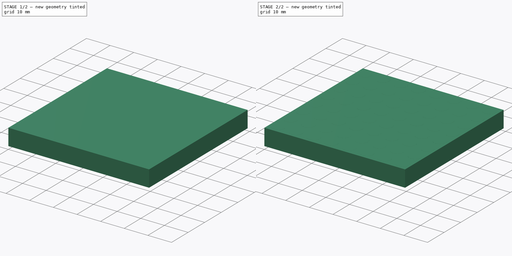
[diagram: build sequence overview — one tinted view per stage of 2, left to right]
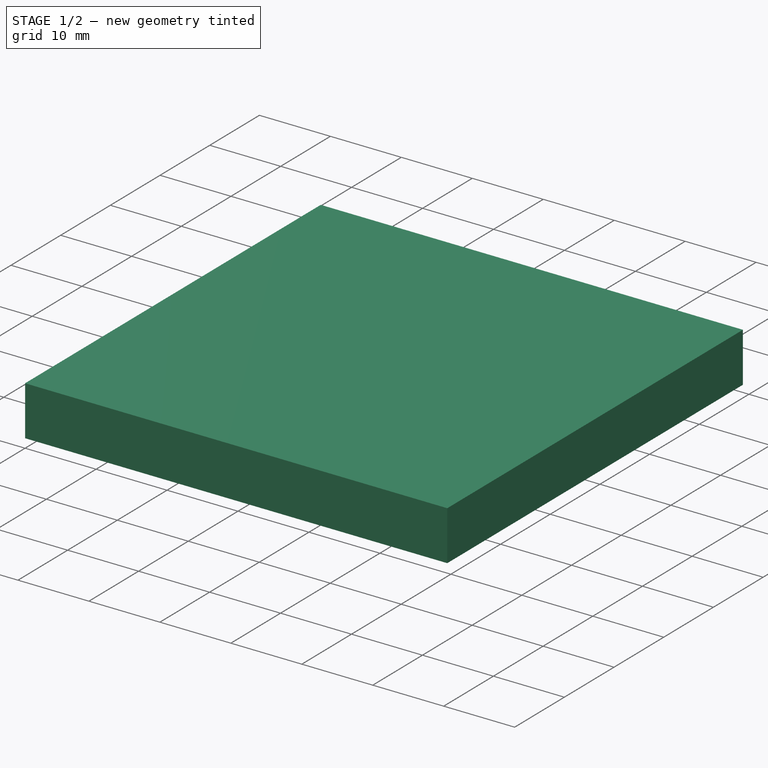
[diagram: stage 1 of 2 — iso view after this stage's code; geometry added in this stage tinted green]
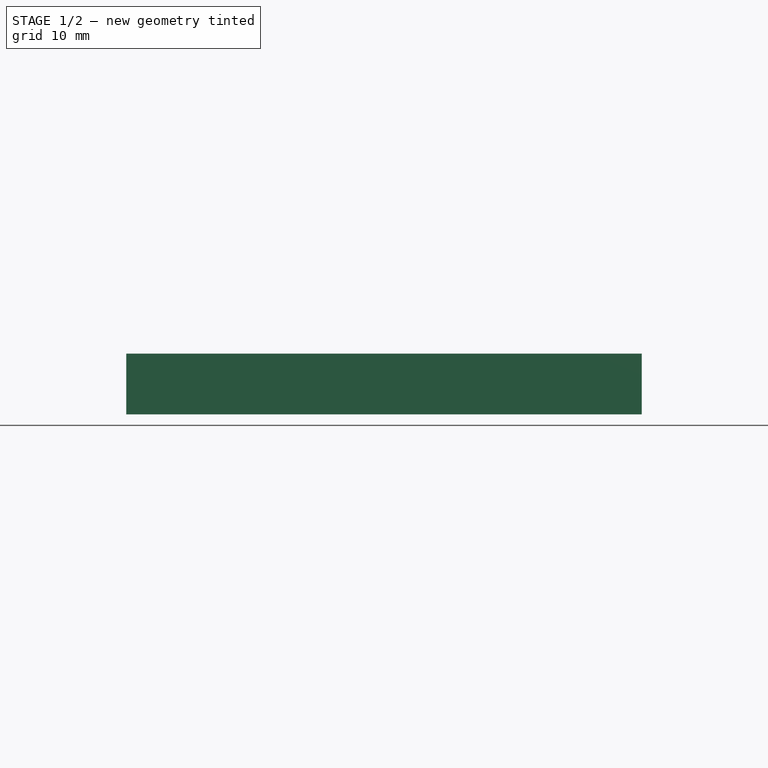
[diagram: stage 1 of 2 — front view after this stage's code; geometry added in this stage tinted green]
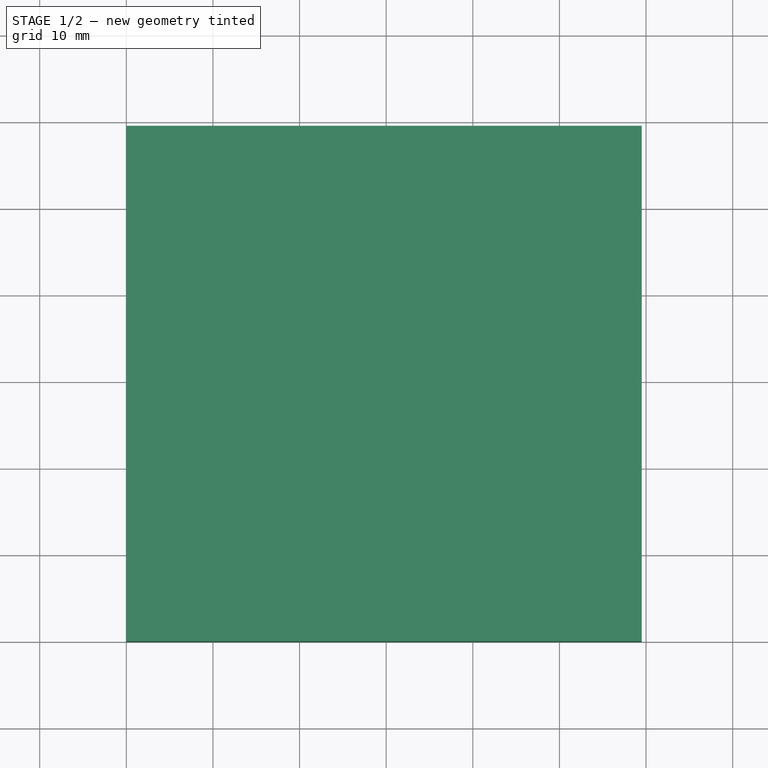
[diagram: stage 1 of 2 — top view after this stage's code; geometry added in this stage tinted green]
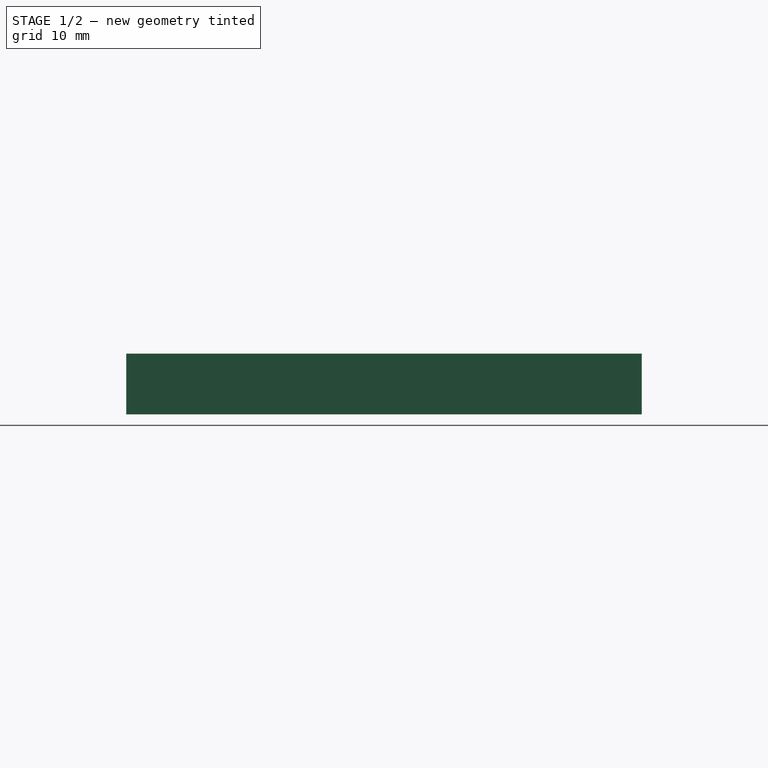
[diagram: stage 1 of 2 — right view after this stage's code; geometry added in this stage tinted green]
FCSTD DOCUMENT  (FreeCAD 0.21R33771 (Git))
Label: 3d model
License: All rights reserved
LicenseURL: http://en.wikipedia.org/wiki/All_rights_reserved
objects: Sketcher::SketchObject×2, PartDesign::Pad×2, PartDesign::Body×1
note: 7 computed .brp shape members not serialized (recipe doc carries the construction recipe); baked Part::Feature solids carry a one-line shape summary decoded from their .brp

FEATURE [Sketcher::SketchObject] Sketch
  FullyConstrained = true
  MapMode = 5
  Support = -> [XY_Plane]
  sketch-geometry (4):
    g0: LineSegment StartX=0 StartY=0 StartZ=0 EndX=59.5 EndY=0 EndZ=0
    g1: LineSegment StartX=59.5 StartY=0 StartZ=0 EndX=59.5 EndY=59.5 EndZ=0
    g2: LineSegment StartX=59.5 StartY=59.5 StartZ=0 EndX=0 EndY=59.5 EndZ=0
    g3: LineSegment StartX=0 StartY=59.5 StartZ=0 EndX=0 EndY=0 EndZ=0
  constraints (11):
    c: Coincident(g0,g1)
    c: Coincident(g1,g2)
    c: Coincident(g2,g3)
    c: Coincident(g3,g0)
    c: Horizontal(g0)
    c: Horizontal(g2)
    c: Vertical(g1)
    c: Vertical(g3)
    c: Coincident(g0,g-1)
    c: Distance(g0) = 59.5
    c: Distance(g1) = 59.5
FEATURE [PartDesign::Pad] Pad
  Direction = (0,0,1)
  Length = 7
  Length2 = 10
  Profile = -> Sketch
  ReferenceAxis = -> Sketch [N_Axis]
  Type = 0
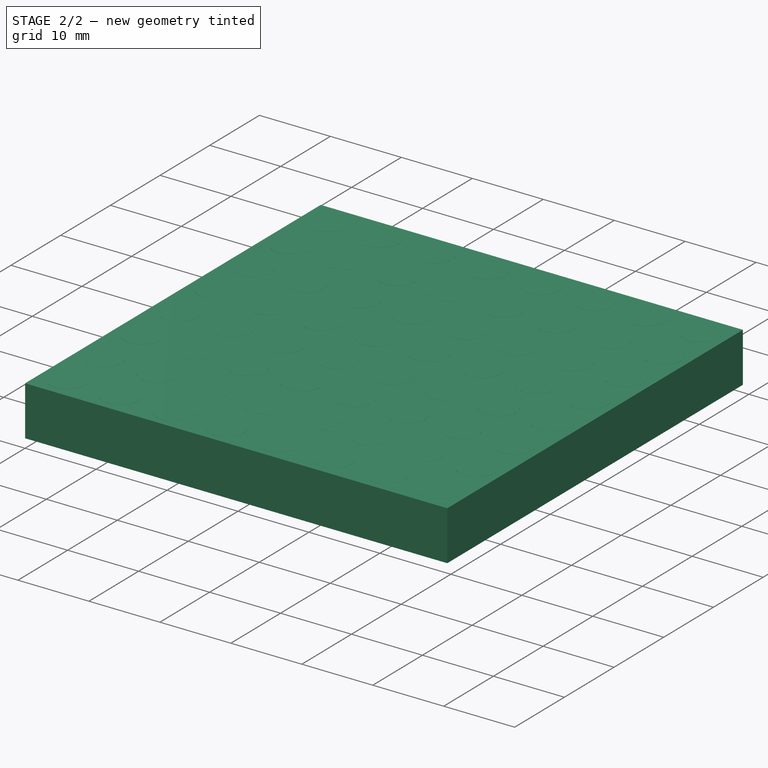
[diagram: stage 2 of 2 — iso view after this stage's code; geometry added in this stage tinted green]
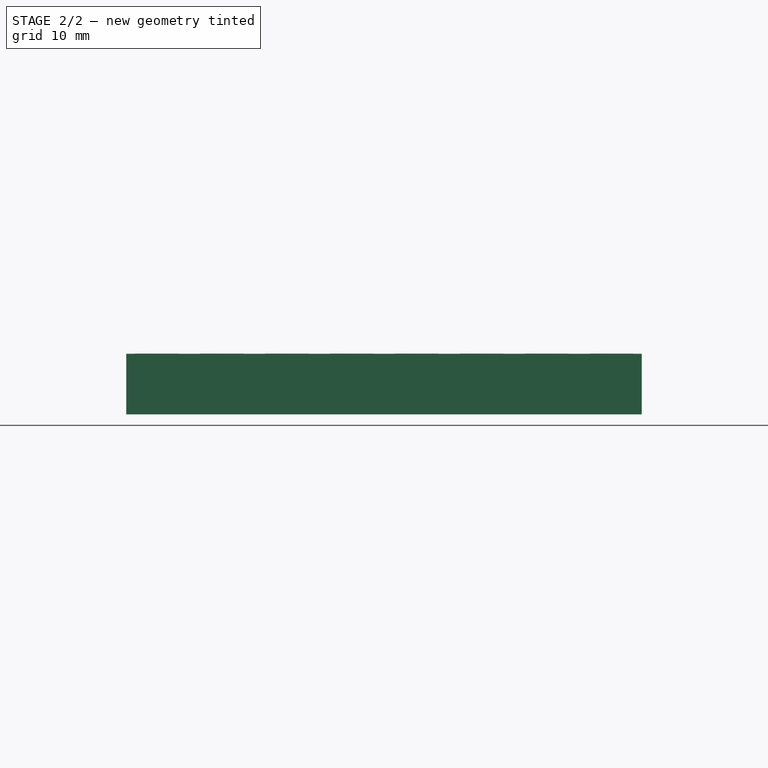
[diagram: stage 2 of 2 — front view after this stage's code; geometry added in this stage tinted green]
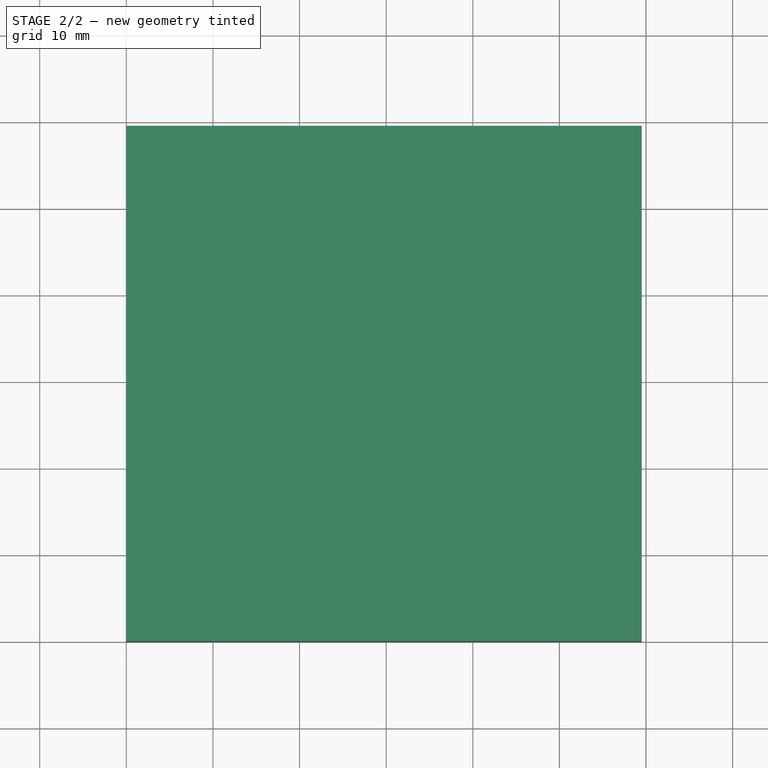
[diagram: stage 2 of 2 — top view after this stage's code; geometry added in this stage tinted green]
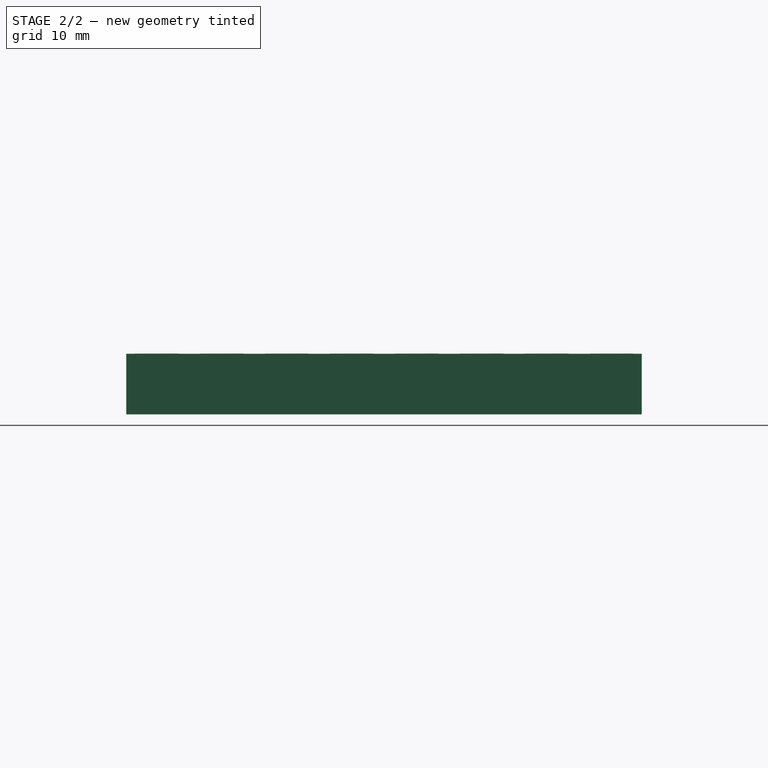
[diagram: stage 2 of 2 — right view after this stage's code; geometry added in this stage tinted green]
FEATURE [Sketcher::SketchObject] Sketch001
  FullyConstrained = true
  MapMode = 5
  Placement = pos=(0,0,7) rot=(0,0,1;0rad)
  Support = -> [Pad]
  sketch-geometry (127):
    g0: Circle CenterX=3.5 CenterY=3.5 CenterZ=0 NormalX=0 NormalY=0 NormalZ=1 AngleXU=0 Radius=2.5
    g1: Circle CenterX=11 CenterY=3.5 CenterZ=0 NormalX=0 NormalY=0 NormalZ=1 AngleXU=0 Radius=2.5
    g2: LineSegment StartX=3.5 StartY=3.5 StartZ=0 EndX=11 EndY=3.5 EndZ=0
    g3: Circle CenterX=18.5 CenterY=3.5 CenterZ=0 NormalX=0 NormalY=0 NormalZ=1 AngleXU=0 Radius=2.5
    g4: LineSegment StartX=11 StartY=3.5 StartZ=0 EndX=18.5 EndY=3.5 EndZ=0
    g5: Circle CenterX=26 CenterY=3.5 CenterZ=0 NormalX=0 NormalY=0 NormalZ=1 AngleXU=0 Radius=2.5
    g6: LineSegment StartX=18.5 StartY=3.5 StartZ=0 EndX=26 EndY=3.5 EndZ=0
    g7: Circle CenterX=33.5 CenterY=3.5 CenterZ=0 NormalX=0 NormalY=0 NormalZ=1 AngleXU=0 Radius=2.5
    g8: LineSegment StartX=26 StartY=3.5 StartZ=0 EndX=33.5 EndY=3.5 EndZ=0
    g9: Circle CenterX=41 CenterY=3.5 CenterZ=0 NormalX=0 NormalY=0 NormalZ=1 AngleXU=0 Radius=2.5
    g10: LineSegment StartX=33.5 StartY=3.5 StartZ=0 EndX=41 EndY=3.5 EndZ=0
    g11: Circle CenterX=48.5 CenterY=3.5 CenterZ=0 NormalX=0 NormalY=0 NormalZ=1 AngleXU=0 Radius=2.5
    g12: LineSegment StartX=41 StartY=3.5 StartZ=0 EndX=48.5 EndY=3.5 EndZ=0
    g13: Circle CenterX=56 CenterY=3.5 CenterZ=0 NormalX=0 NormalY=0 NormalZ=1 AngleXU=0 Radius=2.5
    g14: LineSegment StartX=48.5 StartY=3.5 StartZ=0 EndX=56 EndY=3.5 EndZ=0
    g15: Circle CenterX=3.5 CenterY=11 CenterZ=0 NormalX=0 NormalY=0 NormalZ=1 AngleXU=0 Radius=2.5
    g16: Circle CenterX=11 CenterY=11 CenterZ=0 NormalX=0 NormalY=0 NormalZ=1 AngleXU=0 Radius=2.5
    g17: LineSegment StartX=3.5 StartY=11 StartZ=0 EndX=11 EndY=11 EndZ=0
    g18: Circle CenterX=18.5 CenterY=11 CenterZ=0 NormalX=0 NormalY=0 NormalZ=1 AngleXU=0 Radius=2.5
    g19: LineSegment StartX=11 StartY=11 StartZ=0 EndX=18.5 EndY=11 EndZ=0
    g20: Circle CenterX=26 CenterY=11 CenterZ=0 NormalX=0 NormalY=0 NormalZ=1 AngleXU=0 Radius=2.5
    g21: LineSegment StartX=18.5 StartY=11 StartZ=0 EndX=26 EndY=11 EndZ=0
    g22: Circle CenterX=33.5 CenterY=11 CenterZ=0 NormalX=0 NormalY=0 NormalZ=1 AngleXU=0 Radius=2.5
    g23: LineSegment StartX=26 StartY=11 StartZ=0 EndX=33.5 EndY=11 EndZ=0
    g24: Circle CenterX=41 CenterY=11 CenterZ=0 NormalX=0 NormalY=0 NormalZ=1 AngleXU=0 Radius=2.5
    g25: LineSegment StartX=33.5 StartY=11 StartZ=0 EndX=41 EndY=11 EndZ=0
    g26: Circle CenterX=48.5 CenterY=11 CenterZ=0 NormalX=0 NormalY=0 NormalZ=1 AngleXU=0 Radius=2.5
    g27: LineSegment StartX=41 StartY=11 StartZ=0 EndX=48.5 EndY=11 EndZ=0
    g28: Circle CenterX=56 CenterY=11 CenterZ=0 NormalX=0 NormalY=0 NormalZ=1 AngleXU=0 Radius=2.5
    g29: LineSegment StartX=48.5 StartY=11 StartZ=0 EndX=56 EndY=11 EndZ=0
    g30: LineSegment StartX=3.5 StartY=3.5 StartZ=0 EndX=3.5 EndY=11 EndZ=0
    g31: Circle CenterX=3.5 CenterY=18.5 CenterZ=0 NormalX=0 NormalY=0 NormalZ=1 AngleXU=0 Radius=2.5
    g32: Circle CenterX=11 CenterY=18.5 CenterZ=0 NormalX=0 NormalY=0 NormalZ=1 AngleXU=0 Radius=2.5
    g33: LineSegment StartX=3.5 StartY=18.5 StartZ=0 EndX=11 EndY=18.5 EndZ=0
    g34: Circle CenterX=18.5 CenterY=18.5 CenterZ=0 NormalX=0 NormalY=0 NormalZ=1 AngleXU=0 Radius=2.5
    g35: LineSegment StartX=11 StartY=18.5 StartZ=0 EndX=18.5 EndY=18.5 EndZ=0
    g36: Circle CenterX=26 CenterY=18.5 CenterZ=0 NormalX=0 NormalY=0 NormalZ=1 AngleXU=0 Radius=2.5
    g37: LineSegment StartX=18.5 StartY=18.5 StartZ=0 EndX=26 EndY=18.5 EndZ=0
    g38: Circle CenterX=33.5 CenterY=18.5 CenterZ=0 NormalX=0 NormalY=0 NormalZ=1 AngleXU=0 Radius=2.5
    g39: LineSegment StartX=26 StartY=18.5 StartZ=0 EndX=33.5 EndY=18.5 EndZ=0
    g40: Circle CenterX=41 CenterY=18.5 CenterZ=0 NormalX=0 NormalY=0 NormalZ=1 AngleXU=0 Radius=2.5
    g41: LineSegment StartX=33.5 StartY=18.5 StartZ=0 EndX=41 EndY=18.5 EndZ=0
    g42: Circle CenterX=48.5 CenterY=18.5 CenterZ=0 NormalX=0 NormalY=0 NormalZ=1 AngleXU=0 Radius=2.5
    g43: LineSegment StartX=41 StartY=18.5 StartZ=0 EndX=48.5 EndY=18.5 EndZ=0
    g44: Circle CenterX=56 CenterY=18.5 CenterZ=0 NormalX=0 NormalY=0 NormalZ=1 AngleXU=0 Radius=2.5
    g45: LineSegment StartX=48.5 StartY=18.5 StartZ=0 EndX=56 EndY=18.5 EndZ=0
    g46: LineSegment StartX=3.5 StartY=11 StartZ=0 EndX=3.5 EndY=18.5 EndZ=0
    g47: Circle CenterX=3.5 CenterY=26 CenterZ=0 NormalX=0 NormalY=0 NormalZ=1 AngleXU=0 Radius=2.5
    g48: Circle CenterX=11 CenterY=26 CenterZ=0 NormalX=0 NormalY=0 NormalZ=1 AngleXU=0 Radius=2.5
    g49: LineSegment StartX=3.5 StartY=26 StartZ=0 EndX=11 EndY=26 EndZ=0
    g50: Circle CenterX=18.5 CenterY=26 CenterZ=0 NormalX=0 NormalY=0 NormalZ=1 AngleXU=0 Radius=2.5
    g51: LineSegment StartX=11 StartY=26 StartZ=0 EndX=18.5 EndY=26 EndZ=0
    g52: Circle CenterX=26 CenterY=26 CenterZ=0 NormalX=0 NormalY=0 NormalZ=1 AngleXU=0 Radius=2.5
    g53: LineSegment StartX=18.5 StartY=26 StartZ=0 EndX=26 EndY=26 EndZ=0
    g54: Circle CenterX=33.5 CenterY=26 CenterZ=0 NormalX=0 NormalY=0 NormalZ=1 AngleXU=0 Radius=2.5
    g55: LineSegment StartX=26 StartY=26 StartZ=0 EndX=33.5 EndY=26 EndZ=0
    g56: Circle CenterX=41 CenterY=26 CenterZ=0 NormalX=0 NormalY=0 NormalZ=1 AngleXU=0 Radius=2.5
    g57: LineSegment StartX=33.5 StartY=26 StartZ=0 EndX=41 EndY=26 EndZ=0
    g58: Circle CenterX=48.5 CenterY=26 CenterZ=0 NormalX=0 NormalY=0 NormalZ=1 AngleXU=0 Radius=2.5
    g59: LineSegment StartX=41 StartY=26 StartZ=0 EndX=48.5 EndY=26 EndZ=0
    g60: Circle CenterX=56 CenterY=26 CenterZ=0 NormalX=0 NormalY=0 NormalZ=1 AngleXU=0 Radius=2.5
    g61: LineSegment StartX=48.5 StartY=26 StartZ=0 EndX=56 EndY=26 EndZ=0
    g62: LineSegment StartX=3.5 StartY=18.5 StartZ=0 EndX=3.5 EndY=26 EndZ=0
    g63: Circle CenterX=3.5 CenterY=33.5 CenterZ=0 NormalX=0 NormalY=0 NormalZ=1 AngleXU=0 Radius=2.5
    g64: Circle CenterX=11 CenterY=33.5 CenterZ=0 NormalX=0 NormalY=0 NormalZ=1 AngleXU=0 Radius=2.5
    g65: LineSegment StartX=3.5 StartY=33.5 StartZ=0 EndX=11 EndY=33.5 EndZ=0
    g66: Circle CenterX=18.5 CenterY=33.5 CenterZ=0 NormalX=0 NormalY=0 NormalZ=1 AngleXU=0 Radius=2.5
    g67: LineSegment StartX=11 StartY=33.5 StartZ=0 EndX=18.5 EndY=33.5 EndZ=0
    g68: Circle CenterX=26 CenterY=33.5 CenterZ=0 NormalX=0 NormalY=0 NormalZ=1 AngleXU=0 Radius=2.5
    g69: LineSegment StartX=18.5 StartY=33.5 StartZ=0 EndX=26 EndY=33.5 EndZ=0
    g70: Circle CenterX=33.5 CenterY=33.5 CenterZ=0 NormalX=0 NormalY=0 NormalZ=1 AngleXU=0 Radius=2.5
    g71: LineSegment StartX=26 StartY=33.5 StartZ=0 EndX=33.5 EndY=33.5 EndZ=0
    g72: Circle CenterX=41 CenterY=33.5 CenterZ=0 NormalX=0 NormalY=0 NormalZ=1 AngleXU=0 Radius=2.5
    g73: LineSegment StartX=33.5 StartY=33.5 StartZ=0 EndX=41 EndY=33.5 EndZ=0
    g74: Circle CenterX=48.5 CenterY=33.5 CenterZ=0 NormalX=0 NormalY=0 NormalZ=1 AngleXU=0 Radius=2.5
    g75: LineSegment StartX=41 StartY=33.5 StartZ=0 EndX=48.5 EndY=33.5 EndZ=0
    g76: Circle CenterX=56 CenterY=33.5 CenterZ=0 NormalX=0 NormalY=0 NormalZ=1 AngleXU=0 Radius=2.5
    g77: LineSegment StartX=48.5 StartY=33.5 StartZ=0 EndX=56 EndY=33.5 EndZ=0
    g78: LineSegment StartX=3.5 StartY=26 StartZ=0 EndX=3.5 EndY=33.5 EndZ=0
    g79: Circle CenterX=3.5 CenterY=41 CenterZ=0 NormalX=0 NormalY=0 NormalZ=1 AngleXU=0 Radius=2.5
    g80: Circle CenterX=11 CenterY=41 CenterZ=0 NormalX=0 NormalY=0 NormalZ=1 AngleXU=0 Radius=2.5
    g81: LineSegment StartX=3.5 StartY=41 StartZ=0 EndX=11 EndY=41 EndZ=0
    g82: Circle CenterX=18.5 CenterY=41 CenterZ=0 NormalX=0 NormalY=0 NormalZ=1 AngleXU=0 Radius=2.5
    g83: LineSegment StartX=11 StartY=41 StartZ=0 EndX=18.5 EndY=41 EndZ=0
    g84: Circle CenterX=26 CenterY=41 CenterZ=0 NormalX=0 NormalY=0 NormalZ=1 AngleXU=0 Radius=2.5
    g85: LineSegment StartX=18.5 StartY=41 StartZ=0 EndX=26 EndY=41 EndZ=0
    g86: Circle CenterX=33.5 CenterY=41 CenterZ=0 NormalX=0 NormalY=0 NormalZ=1 AngleXU=0 Radius=2.5
    g87: LineSegment StartX=26 StartY=41 StartZ=0 EndX=33.5 EndY=41 EndZ=0
    g88: Circle CenterX=41 CenterY=41 CenterZ=0 NormalX=0 NormalY=0 NormalZ=1 AngleXU=0 Radius=2.5
    g89: LineSegment StartX=33.5 StartY=41 StartZ=0 EndX=41 EndY=41 EndZ=0
    g90: Circle CenterX=48.5 CenterY=41 CenterZ=0 NormalX=0 NormalY=0 NormalZ=1 AngleXU=0 Radius=2.5
    g91: LineSegment StartX=41 StartY=41 StartZ=0 EndX=48.5 EndY=41 EndZ=0
    g92: Circle CenterX=56 CenterY=41 CenterZ=0 NormalX=0 NormalY=0 NormalZ=1 AngleXU=0 Radius=2.5
    g93: LineSegment StartX=48.5 StartY=41 StartZ=0 EndX=56 EndY=41 EndZ=0
    g94: LineSegment StartX=3.5 StartY=33.5 StartZ=0 EndX=3.5 EndY=41 EndZ=0
    g95: Circle CenterX=3.5 CenterY=48.5 CenterZ=0 NormalX=0 NormalY=0 NormalZ=1 AngleXU=0 Radius=2.5
    g96: Circle CenterX=11 CenterY=48.5 CenterZ=0 NormalX=0 NormalY=0 NormalZ=1 AngleXU=0 Radius=2.5
    g97: LineSegment StartX=3.5 StartY=48.5 StartZ=0 EndX=11 EndY=48.5 EndZ=0
    g98: Circle CenterX=18.5 CenterY=48.5 CenterZ=0 NormalX=0 NormalY=0 NormalZ=1 AngleXU=0 Radius=2.5
    g99: LineSegment StartX=11 StartY=48.5 StartZ=0 EndX=18.5 EndY=48.5 EndZ=0
    g100: Circle CenterX=26 CenterY=48.5 CenterZ=0 NormalX=0 NormalY=0 NormalZ=1 AngleXU=0 Radius=2.5
    g101: LineSegment StartX=18.5 StartY=48.5 StartZ=0 EndX=26 EndY=48.5 EndZ=0
    g102: Circle CenterX=33.5 CenterY=48.5 CenterZ=0 NormalX=0 NormalY=0 NormalZ=1 AngleXU=0 Radius=2.5
    g103: LineSegment StartX=26 StartY=48.5 StartZ=0 EndX=33.5 EndY=48.5 EndZ=0
    g104: Circle CenterX=41 CenterY=48.5 CenterZ=0 NormalX=0 NormalY=0 NormalZ=1 AngleXU=0 Radius=2.5
    g105: LineSegment StartX=33.5 StartY=48.5 StartZ=0 EndX=41 EndY=48.5 EndZ=0
    g106: Circle CenterX=48.5 CenterY=48.5 CenterZ=0 NormalX=0 NormalY=0 NormalZ=1 AngleXU=0 Radius=2.5
    g107: LineSegment StartX=41 StartY=48.5 StartZ=0 EndX=48.5 EndY=48.5 EndZ=0
    g108: Circle CenterX=56 CenterY=48.5 CenterZ=0 NormalX=0 NormalY=0 NormalZ=1 AngleXU=0 Radius=2.5
    g109: LineSegment StartX=48.5 StartY=48.5 StartZ=0 EndX=56 EndY=48.5 EndZ=0
    g110: LineSegment StartX=3.5 StartY=41 StartZ=0 EndX=3.5 EndY=48.5 EndZ=0
    g111: Circle CenterX=3.5 CenterY=56 CenterZ=0 NormalX=0 NormalY=0 NormalZ=1 AngleXU=0 Radius=2.5
    g112: Circle CenterX=11 CenterY=56 CenterZ=0 NormalX=0 NormalY=0 NormalZ=1 AngleXU=0 Radius=2.5
    g113: LineSegment StartX=3.5 StartY=56 StartZ=0 EndX=11 EndY=56 EndZ=0
    g114: Circle CenterX=18.5 CenterY=56 CenterZ=0 NormalX=0 NormalY=0 NormalZ=1 AngleXU=0 Radius=2.5
    g115: LineSegment StartX=11 StartY=56 StartZ=0 EndX=18.5 EndY=56 EndZ=0
    g116: Circle CenterX=26 CenterY=56 CenterZ=0 NormalX=0 NormalY=0 NormalZ=1 AngleXU=0 Radius=2.5
    g117: LineSegment StartX=18.5 StartY=56 StartZ=0 EndX=26 EndY=56 EndZ=0
    g118: Circle CenterX=33.5 CenterY=56 CenterZ=0 NormalX=0 NormalY=0 NormalZ=1 AngleXU=0 Radius=2.5
    g119: LineSegment StartX=26 StartY=56 StartZ=0 EndX=33.5 EndY=56 EndZ=0
    g120: Circle CenterX=41 CenterY=56 CenterZ=0 NormalX=0 NormalY=0 NormalZ=1 AngleXU=0 Radius=2.5
    g121: LineSegment StartX=33.5 StartY=56 StartZ=0 EndX=41 EndY=56 EndZ=0
    g122: Circle CenterX=48.5 CenterY=56 CenterZ=0 NormalX=0 NormalY=0 NormalZ=1 AngleXU=0 Radius=2.5
    g123: LineSegment StartX=41 StartY=56 StartZ=0 EndX=48.5 EndY=56 EndZ=0
    g124: Circle CenterX=56 CenterY=56 CenterZ=0 NormalX=0 NormalY=0 NormalZ=1 AngleXU=0 Radius=2.5
    g125: LineSegment StartX=48.5 StartY=56 StartZ=0 EndX=56 EndY=56 EndZ=0
    g126: LineSegment StartX=3.5 StartY=48.5 StartZ=0 EndX=3.5 EndY=56 EndZ=0
  constraints (318):
    c: Diameter(g0) = 5
    c: Distance(g0,g-1) = 1
    c: Distance(g0,g-2) = 1
    c: Diameter(g1) = 5
    c: Coincident(g0,g2)
    c: Coincident(g1,g2)
    c: Distance(g2) = 7.5
    c: Angle(g2) = 0
    c: Diameter(g3) = 5
    c: Coincident(g1,g4)
    c: Coincident(g3,g4)
    c: Equal(g2,g4)
    c: Parallel(g4,g2)
    c: Diameter(g5) = 5
    c: Coincident(g3,g6)
    c: Coincident(g5,g6)
    c: Equal(g2,g6)
    c: Parallel(g6,g2)
    c: Diameter(g7) = 5
    c: Coincident(g5,g8)
    c: Coincident(g7,g8)
    c: Equal(g2,g8)
    c: Parallel(g8,g2)
    c: Diameter(g9) = 5
    c: Coincident(g7,g10)
    c: Coincident(g9,g10)
    c: Equal(g2,g10)
    c: Parallel(g10,g2)
    c: Diameter(g11) = 5
    c: Coincident(g9,g12)
    c: Coincident(g11,g12)
    c: Equal(g2,g12)
    c: Parallel(g12,g2)
    c: Diameter(g13) = 5
    c: Coincident(g11,g14)
    c: Coincident(g13,g14)
    c: Equal(g2,g14)
    c: Parallel(g14,g2)
    c: Diameter(g15) = 5
    c: Diameter(g16) = 5
    c: Coincident(g15,g17)
    c: Coincident(g16,g17)
    c: Distance(g17) = 7.5
    c: Angle(g17) = 0
    c: Diameter(g18) = 5
    c: Coincident(g16,g19)
    c: Coincident(g18,g19)
    c: Equal(g17,g19)
    c: Parallel(g19,g17)
    c: Diameter(g20) = 5
    c: Coincident(g18,g21)
    c: Coincident(g20,g21)
    c: Equal(g17,g21)
    c: Parallel(g21,g17)
    c: Diameter(g22) = 5
    c: Coincident(g20,g23)
    c: Coincident(g22,g23)
    c: Equal(g17,g23)
    c: Parallel(g23,g17)
    c: Diameter(g24) = 5
    c: Coincident(g22,g25)
    c: Coincident(g24,g25)
    c: Equal(g17,g25)
    c: Parallel(g25,g17)
    c: Diameter(g26) = 5
    c: Coincident(g24,g27)
    c: Coincident(g26,g27)
    c: Equal(g17,g27)
    c: Parallel(g27,g17)
    c: Diameter(g28) = 5
    c: Coincident(g26,g29)
    c: Coincident(g28,g29)
    c: Equal(g17,g29)
    c: Parallel(g29,g17)
    c: Coincident(g0,g30)
    c: Coincident(g15,g30)
    c: Distance(g30) = 7.5
    c: Angle(g30) = 1.5708
    c: Diameter(g31) = 5
    c: Diameter(g32) = 5
    c: Coincident(g31,g33)
    c: Coincident(g32,g33)
    c: Distance(g33) = 7.5
    c: Angle(g33) = 0
    c: Diameter(g34) = 5
    c: Coincident(g32,g35)
    c: Coincident(g34,g35)
    c: Equal(g33,g35)
    c: Parallel(g35,g33)
    c: Diameter(g36) = 5
    c: Coincident(g34,g37)
    c: Coincident(g36,g37)
    c: Equal(g33,g37)
    c: Parallel(g37,g33)
    c: Diameter(g38) = 5
    c: Coincident(g36,g39)
    c: Coincident(g38,g39)
    c: Equal(g33,g39)
    c: Parallel(g39,g33)
    c: Diameter(g40) = 5
    c: Coincident(g38,g41)
    c: Coincident(g40,g41)
    c: Equal(g33,g41)
    c: Parallel(g41,g33)
    c: Diameter(g42) = 5
    c: Coincident(g40,g43)
    c: Coincident(g42,g43)
    c: Equal(g33,g43)
    c: Parallel(g43,g33)
    c: Diameter(g44) = 5
    c: Coincident(g42,g45)
    c: Coincident(g44,g45)
    c: Equal(g33,g45)
    c: Parallel(g45,g33)
    c: Coincident(g15,g46)
    c: Coincident(g31,g46)
    c: Equal(g30,g46)
    c: Parallel(g46,g30)
    c: Diameter(g47) = 5
    c: Diameter(g48) = 5
    c: Coincident(g47,g49)
    c: Coincident(g48,g49)
    c: Distance(g49) = 7.5
    c: Angle(g49) = 0
    c: Diameter(g50) = 5
    c: Coincident(g48,g51)
    c: Coincident(g50,g51)
    c: Equal(g49,g51)
    c: Parallel(g51,g49)
    c: Diameter(g52) = 5
    c: Coincident(g50,g53)
    c: Coincident(g52,g53)
    c: Equal(g49,g53)
    c: Parallel(g53,g49)
    c: Diameter(g54) = 5
    c: Coincident(g52,g55)
    c: Coincident(g54,g55)
    c: Equal(g49,g55)
    c: Parallel(g55,g49)
    c: Diameter(g56) = 5
    c: Coincident(g54,g57)
    c: Coincident(g56,g57)
    c: Equal(g49,g57)
    c: Parallel(g57,g49)
    c: Diameter(g58) = 5
    c: Coincident(g56,g59)
    c: Coincident(g58,g59)
    c: Equal(g49,g59)
    c: Parallel(g59,g49)
    c: Diameter(g60) = 5
    c: Coincident(g58,g61)
    c: Coincident(g60,g61)
    c: Equal(g49,g61)
    c: Parallel(g61,g49)
    c: Coincident(g31,g62)
    c: Coincident(g47,g62)
    c: Equal(g30,g62)
    c: Parallel(g62,g30)
    c: Diameter(g63) = 5
    c: Diameter(g64) = 5
    c: Coincident(g63,g65)
    c: Coincident(g64,g65)
    c: Distance(g65) = 7.5
    c: Angle(g65) = 0
    c: Diameter(g66) = 5
    c: Coincident(g64,g67)
    c: Coincident(g66,g67)
    c: Equal(g65,g67)
    c: Parallel(g67,g65)
    c: Diameter(g68) = 5
    c: Coincident(g66,g69)
    c: Coincident(g68,g69)
    c: Equal(g65,g69)
    c: Parallel(g69,g65)
    c: Diameter(g70) = 5
    c: Coincident(g68,g71)
    c: Coincident(g70,g71)
    c: Equal(g65,g71)
    c: Parallel(g71,g65)
    c: Diameter(g72) = 5
    c: Coincident(g70,g73)
    c: Coincident(g72,g73)
    c: Equal(g65,g73)
    c: Parallel(g73,g65)
    c: Diameter(g74) = 5
    c: Coincident(g72,g75)
    c: Coincident(g74,g75)
    c: Equal(g65,g75)
    c: Parallel(g75,g65)
    c: Diameter(g76) = 5
    c: Coincident(g74,g77)
    c: Coincident(g76,g77)
    c: Equal(g65,g77)
    c: Parallel(g77,g65)
    c: Coincident(g47,g78)
    c: Coincident(g63,g78)
    c: Equal(g30,g78)
    c: Parallel(g78,g30)
    c: Diameter(g79) = 5
    c: Diameter(g80) = 5
    c: Coincident(g79,g81)
    c: Coincident(g80,g81)
    c: Distance(g81) = 7.5
    c: Angle(g81) = 0
    c: Diameter(g82) = 5
    c: Coincident(g80,g83)
    c: Coincident(g82,g83)
    c: Equal(g81,g83)
    c: Parallel(g83,g81)
    c: Diameter(g84) = 5
    c: Coincident(g82,g85)
    c: Coincident(g84,g85)
    c: Equal(g81,g85)
    c: Parallel(g85,g81)
    c: Diameter(g86) = 5
    c: Coincident(g84,g87)
    c: Coincident(g86,g87)
    c: Equal(g81,g87)
    c: Parallel(g87,g81)
    c: Diameter(g88) = 5
    c: Coincident(g86,g89)
    c: Coincident(g88,g89)
    c: Equal(g81,g89)
    c: Parallel(g89,g81)
    c: Diameter(g90) = 5
    c: Coincident(g88,g91)
    c: Coincident(g90,g91)
    c: Equal(g81,g91)
    c: Parallel(g91,g81)
    c: Diameter(g92) = 5
    c: Coincident(g90,g93)
    c: Coincident(g92,g93)
    c: Equal(g81,g93)
    c: Parallel(g93,g81)
    c: Coincident(g63,g94)
    c: Coincident(g79,g94)
    c: Equal(g30,g94)
    c: Parallel(g94,g30)
    c: Diameter(g95) = 5
    c: Diameter(g96) = 5
    c: Coincident(g95,g97)
    c: Coincident(g96,g97)
    c: Distance(g97) = 7.5
    c: Angle(g97) = 0
    c: Diameter(g98) = 5
    c: Coincident(g96,g99)
    c: Coincident(g98,g99)
    c: Equal(g97,g99)
    c: Parallel(g99,g97)
    c: Diameter(g100) = 5
    c: Coincident(g98,g101)
    c: Coincident(g100,g101)
    c: Equal(g97,g101)
    c: Parallel(g101,g97)
    c: Diameter(g102) = 5
    c: Coincident(g100,g103)
    c: Coincident(g102,g103)
    c: Equal(g97,g103)
    c: Parallel(g103,g97)
    c: Diameter(g104) = 5
    c: Coincident(g102,g105)
    c: Coincident(g104,g105)
    c: Equal(g97,g105)
    c: Parallel(g105,g97)
    c: Diameter(g106) = 5
    c: Coincident(g104,g107)
    c: Coincident(g106,g107)
    c: Equal(g97,g107)
    c: Parallel(g107,g97)
    c: Diameter(g108) = 5
    c: Coincident(g106,g109)
    c: Coincident(g108,g109)
    c: Equal(g97,g109)
    c: Parallel(g109,g97)
    c: Coincident(g79,g110)
    c: Coincident(g95,g110)
    c: Equal(g30,g110)
    c: Parallel(g110,g30)
    c: Diameter(g111) = 5
    c: Diameter(g112) = 5
    c: Coincident(g111,g113)
    c: Coincident(g112,g113)
    c: Distance(g113) = 7.5
    c: Angle(g113) = 0
    c: Diameter(g114) = 5
    c: Coincident(g112,g115)
    c: Coincident(g114,g115)
    c: Equal(g113,g115)
    c: Parallel(g115,g113)
    c: Diameter(g116) = 5
    c: Coincident(g114,g117)
    c: Coincident(g116,g117)
    c: Equal(g113,g117)
    c: Parallel(g117,g113)
    c: Diameter(g118) = 5
    c: Coincident(g116,g119)
    c: Coincident(g118,g119)
    c: Equal(g113,g119)
    c: Parallel(g119,g113)
    c: Diameter(g120) = 5
    c: Coincident(g118,g121)
    c: Coincident(g120,g121)
    c: Equal(g113,g121)
    c: Parallel(g121,g113)
    c: Diameter(g122) = 5
    c: Coincident(g120,g123)
    c: Coincident(g122,g123)
    c: Equal(g113,g123)
    c: Parallel(g123,g113)
    c: Diameter(g124) = 5
    c: Coincident(g122,g125)
    c: Coincident(g124,g125)
    c: Equal(g113,g125)
    c: Parallel(g125,g113)
    c: Coincident(g95,g126)
    c: Coincident(g111,g126)
    c: Equal(g30,g126)
    c: Parallel(g126,g30)
FEATURE [PartDesign::Pad] Pad001
  BaseFeature = -> Pad
  Direction = (0,0,1)
  Length = 0.01
  Length2 = 10
  Profile = -> Sketch001
  ReferenceAxis = -> Sketch001 [N_Axis]
  Type = 0
FEATURE [PartDesign::Body] Body
  Group = -> [Sketch,Pad,Sketch001,Pad001]
  Origin = -> Origin
  Tip = -> Pad001
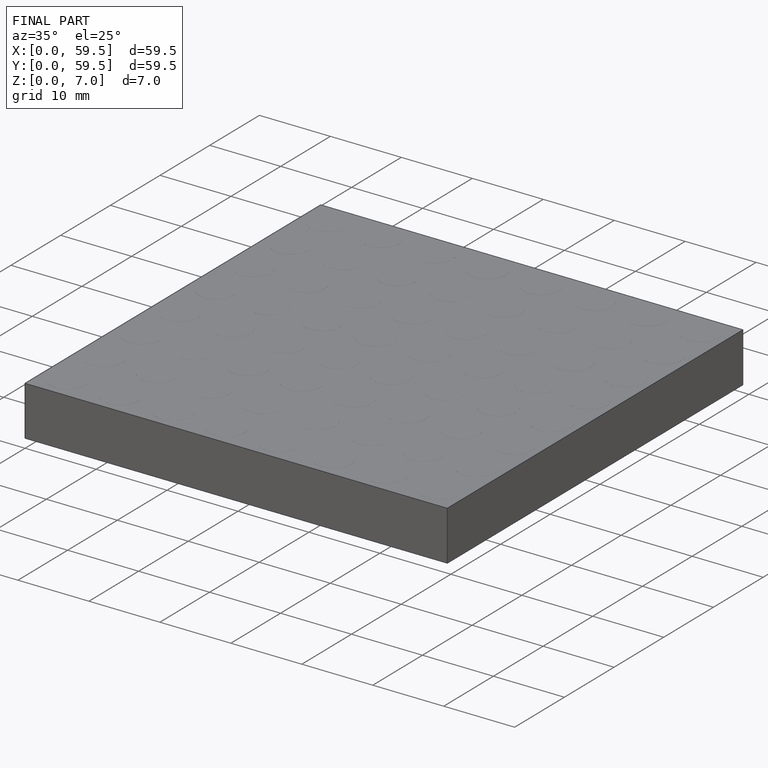
[diagram: finished part — iso view with bounding-box wireframe]
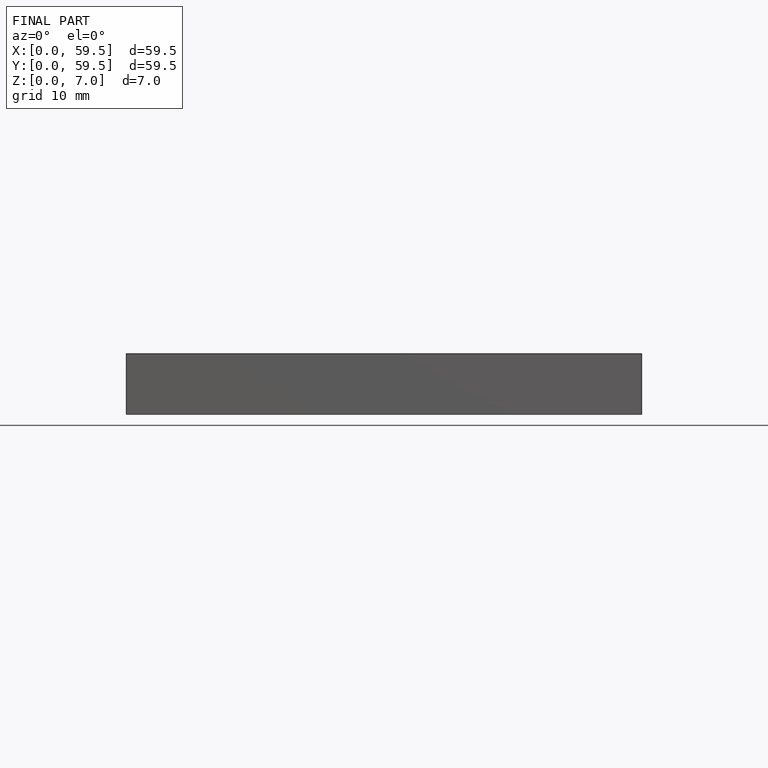
[diagram: finished part — front view with bounding-box wireframe]
